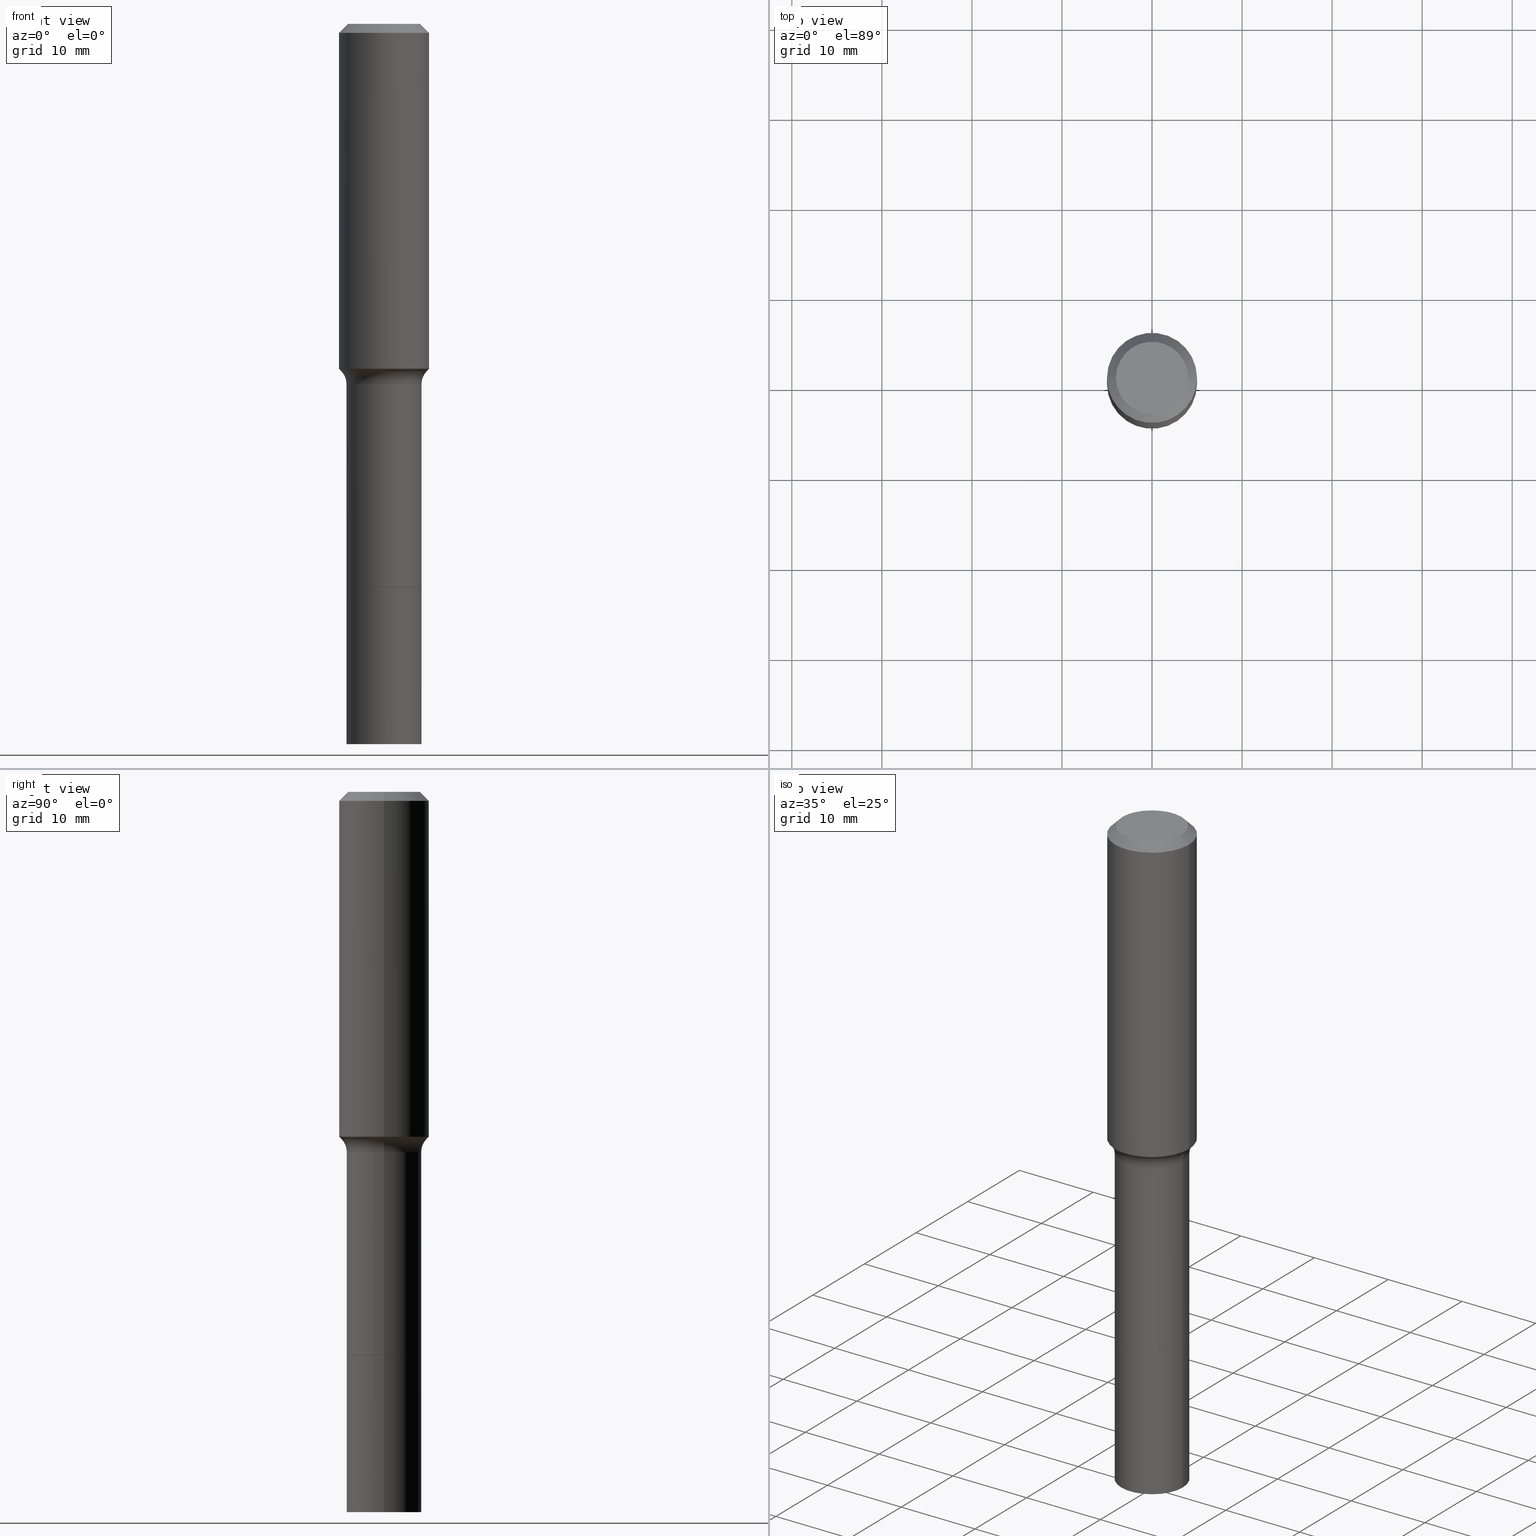
[diagram: canonical four-view strip — front | top / right | iso, engineering-drawing reading convention]
A machine part, canonical four-view strip (front | top / right | iso — engineering-drawing reading convention). The complete STEP part file that produces these views, byte-faithful:
ISO-10303-21;
HEADER;
FILE_DESCRIPTION (( 'STEP AP203' ),
    '1' );
FILE_NAME ('58518.STEP',
    '2025-04-01T15:24:11',
    ( '' ),
    ( '' ),
    'SwSTEP 2.0',
    'SolidWorks 2024',
    '' );
FILE_SCHEMA (( 'CONFIG_CONTROL_DESIGN' ));
ENDSEC;

DATA;
#1 = CARTESIAN_POINT ( 'NONE',  ( 6.027102419723887066E-29, -8.605104907712816179E-15, -2.464599999999999902 ) ) ;
#2 = PLANE ( 'NONE',  #517 ) ;
#3 = EDGE_LOOP ( 'NONE', ( #142, #486, #69, #491 ) ) ;
#4 = ADVANCED_FACE ( 'NONE', ( #74 ), #274, .T. ) ;
#5 = PERSON_AND_ORGANIZATION_ROLE ( 'design_owner' ) ;
#6 = CIRCLE ( 'NONE', #64, 0.1640500000000000014 ) ;
#7 = PERSON_AND_ORGANIZATION_ROLE ( 'creator' ) ;
#8 = CALENDAR_DATE ( 2025, 1, 4 ) ;
#9 = LINE ( 'NONE', #282, #296 ) ;
#10 = DIRECTION ( 'NONE',  ( 1.000000000000000000, -6.982962677686267499E-15, 0.000000000000000000 ) ) ;
#11 = ADVANCED_FACE ( 'NONE', ( #316 ), #512, .F. ) ;
#12 = DIRECTION ( 'NONE',  ( 2.438088387897960049E-29, -3.491481338843145188E-15, -1.000000000000000000 ) ) ;
#13 = AXIS2_PLACEMENT_3D ( 'NONE', #231, #271, #432 ) ;
#14 = APPROVAL_ROLE ( '' ) ;
#15 = DIRECTION ( 'NONE',  ( -2.445468806185136597E-29, 3.491481338843145583E-15, 1.000000000000000000 ) ) ;
#16 = EDGE_LOOP ( 'NONE', ( #335, #272, #263, #386 ) ) ;
#17 = PERSON_AND_ORGANIZATION_ROLE ( 'creator' ) ;
#18 = ADVANCED_FACE ( 'NONE', ( #473 ), #215, .T. ) ;
#19 = CARTESIAN_POINT ( 'NONE',  ( 6.025879685320794265E-29, -8.603359167043393887E-15, -2.464099999999999735 ) ) ;
#20 =( GEOMETRIC_REPRESENTATION_CONTEXT ( 3 ) GLOBAL_UNCERTAINTY_ASSIGNED_CONTEXT ( ( #186 ) ) GLOBAL_UNIT_ASSIGNED_CONTEXT ( ( #487, #134, #94 ) ) REPRESENTATION_CONTEXT ( 'NONE', 'WORKASPACE' ) );
#21 = ORIENTED_EDGE ( 'NONE', *, *, #202, .F. ) ;
#22 = PERSON_AND_ORGANIZATION ( #183, #261 ) ;
#23 = DIRECTION ( 'NONE',  ( -0.7071067811865453523, 2.468850131082234184E-15, -0.7071067811865496822 ) ) ;
#24 = CIRCLE ( 'NONE', #373, 0.1855417038704667287 ) ;
#25 = VECTOR ( 'NONE', #23, 39.37007874015748143 ) ;
#26 = ORIENTED_EDGE ( 'NONE', *, *, #167, .T. ) ;
#27 = CARTESIAN_POINT ( 'NONE',  ( -0.1968500000000000250, -1.302452302324870387E-15, -0.03937000000000025896 ) ) ;
#28 = VERTEX_POINT ( 'NONE', #80 ) ;
#29 = DIRECTION ( 'NONE',  ( 1.000000000000000000, -6.982962677686267499E-15, 0.000000000000000000 ) ) ;
#30 = ORIENTED_EDGE ( 'NONE', *, *, #39, .T. ) ;
#31 = EDGE_CURVE ( 'NONE', #270, #28, #232, .T. ) ;
#32 = CC_DESIGN_APPROVAL ( #496, ( #340 ) ) ;
#33 = LINE ( 'NONE', #387, #170 ) ;
#34 = LINE ( 'NONE', #345, #427 ) ;
#35 = AXIS2_PLACEMENT_3D ( 'NONE', #485, #96, #95 ) ;
#36 = DIRECTION ( 'NONE',  ( -2.445468806185136597E-29, 3.491481338843145583E-15, 1.000000000000000000 ) ) ;
#37 = CARTESIAN_POINT ( 'NONE',  ( -0.1640500000000000014, -8.635291908252151260E-15, -3.149600000000000399 ) ) ;
#38 = DIRECTION ( 'NONE',  ( 0.7071067811864509833, -2.468850131081245741E-15, 0.7071067811866440511 ) ) ;
#39 = EDGE_CURVE ( 'NONE', #58, #417, #6, .T. ) ;
#40 = DIRECTION ( 'NONE',  ( 1.000000000000000000, -6.982962677686265922E-15, 4.876176775795935793E-29 ) ) ;
#41 = CARTESIAN_POINT ( 'NONE',  ( 0.1640500000000000014, -1.214232465209480476E-14, -3.149600000000000399 ) ) ;
#42 = ORIENTED_EDGE ( 'NONE', *, *, #243, .F. ) ;
#43 = AXIS2_PLACEMENT_3D ( 'NONE', #213, #439, #87 ) ;
#44 = AXIS2_PLACEMENT_3D ( 'NONE', #70, #463, #509 ) ;
#45 = DIRECTION ( 'NONE',  ( 1.000000000000000000, -6.982962677686270655E-15, 0.000000000000000000 ) ) ;
#46 = VERTEX_POINT ( 'NONE', #514 ) ;
#47 = APPLICATION_PROTOCOL_DEFINITION ( 'international standard', 'config_control_design', 1994, #173 ) ;
#48 = PERSON_AND_ORGANIZATION ( #183, #261 ) ;
#49 = CARTESIAN_POINT ( 'NONE',  ( 0.000000000000000000, 0.000000000000000000, 0.000000000000000000 ) ) ;
#50 = APPROVAL ( #299, 'UNSPECIFIED' ) ;
#51 = LENGTH_MEASURE_WITH_UNIT ( LENGTH_MEASURE( 0.02539999999999999897 ), #168 );
#52 = DIRECTION ( 'NONE',  ( 1.000000000000000000, -6.982962677686265922E-15, 0.000000000000000000 ) ) ;
#53 = AXIS2_PLACEMENT_3D ( 'NONE', #143, #262, #29 ) ;
#54 = ORIENTED_EDGE ( 'NONE', *, *, #206, .F. ) ;
#55 = EDGE_CURVE ( 'NONE', #220, #218, #388, .T. ) ;
#56 = DATE_AND_TIME ( #185, #129 ) ;
#57 = CARTESIAN_POINT ( 'NONE',  ( -0.2440499999999999337, -3.763606969519893915E-15, -1.574600000000000222 ) ) ;
#58 = VERTEX_POINT ( 'NONE', #37 ) ;
#59 = DATE_TIME_ROLE ( 'classification_date' ) ;
#60 = DIRECTION ( 'NONE',  ( -2.445468806185136597E-29, 3.491481338843145583E-15, 1.000000000000000000 ) ) ;
#61 = ORIENTED_EDGE ( 'NONE', *, *, #322, .F. ) ;
#62 = APPROVAL_DATE_TIME ( #490, #50 ) ;
#63 = CARTESIAN_POINT ( 'NONE',  ( 3.850635182219116347E-29, -5.497686516142417553E-15, -1.574600000000000222 ) ) ;
#64 = AXIS2_PLACEMENT_3D ( 'NONE', #349, #384, #237 ) ;
#65 = AXIS2_PLACEMENT_3D ( 'NONE', #153, #235, #353 ) ;
#66 = ORIENTED_EDGE ( 'NONE', *, *, #214, .T. ) ;
#67 = SECURITY_CLASSIFICATION_LEVEL ( 'unclassified' ) ;
#68 = CARTESIAN_POINT ( 'NONE',  ( 0.1640499999999999181, -6.643241543416849216E-15, -1.574600000000000222 ) ) ;
#69 = ORIENTED_EDGE ( 'NONE', *, *, #250, .T. ) ;
#70 = CARTESIAN_POINT ( 'NONE',  ( 0.000000000000000000, 0.000000000000000000, 0.000000000000000000 ) ) ;
#71 = ORIENTED_EDGE ( 'NONE', *, *, #250, .F. ) ;
#72 = LOCAL_TIME ( 11, 24, 11.00000000000000000, #360 ) ;
#73 = CARTESIAN_POINT ( 'NONE',  ( 0.000000000000000000, 0.000000000000000000, 0.000000000000000000 ) ) ;
#74 = FACE_OUTER_BOUND ( 'NONE', #3, .T. ) ;
#75 = CIRCLE ( 'NONE', #343, 0.1640500000000000014 ) ;
#76 = CC_DESIGN_PERSON_AND_ORGANIZATION_ASSIGNMENT ( #48, #5, ( #483 ) ) ;
#77 = CARTESIAN_POINT ( 'NONE',  ( 9.627810689950945397E-31, -1.374596203102555315E-16, -0.03937000000000025896 ) ) ;
#78 = ORIENTED_EDGE ( 'NONE', *, *, #461, .F. ) ;
#79 = DIRECTION ( 'NONE',  ( -1.000000000000000000, 6.982962677686265922E-15, -4.876176775795935793E-29 ) ) ;
#80 = CARTESIAN_POINT ( 'NONE',  ( -0.1968500000000001915, -3.866148359683242586E-15, -1.507913468261995016 ) ) ;
#81 = CARTESIAN_POINT ( 'NONE',  ( 6.027102419723887066E-29, -8.605104907712816179E-15, -2.464599999999999902 ) ) ;
#82 = VERTEX_POINT ( 'NONE', #196 ) ;
#83 = AXIS2_PLACEMENT_3D ( 'NONE', #73, #36, #199 ) ;
#84 = DIRECTION ( 'NONE',  ( 0.000000000000000000, 0.000000000000000000, 1.000000000000000000 ) ) ;
#85 = EDGE_CURVE ( 'NONE', #121, #267, #350, .T. ) ;
#86 = CALENDAR_DATE ( 2025, 1, 4 ) ;
#87 = DIRECTION ( 'NONE',  ( 1.000000000000000000, -6.982962677686265922E-15, 0.000000000000000000 ) ) ;
#88 = AXIS2_PLACEMENT_3D ( 'NONE', #484, #169, #130 ) ;
#89 = CARTESIAN_POINT ( 'NONE',  ( 3.850635182219116347E-29, -5.497686516142417553E-15, -1.574600000000000222 ) ) ;
#90 = APPLICATION_CONTEXT ( 'configuration controlled 3d designs of mechanical parts and assemblies' ) ;
#91 = EDGE_CURVE ( 'NONE', #121, #366, #34, .T. ) ;
#92 = AXIS2_PLACEMENT_3D ( 'NONE', #455, #378, #52 ) ;
#93 = DATE_TIME_ROLE ( 'creation_date' ) ;
#94 =( NAMED_UNIT ( * ) SI_UNIT ( $, .STERADIAN. ) SOLID_ANGLE_UNIT ( ) );
#95 = DIRECTION ( 'NONE',  ( 1.000000000000000000, -6.982962677686270655E-15, 0.000000000000000000 ) ) ;
#96 = DIRECTION ( 'NONE',  ( -2.445468806185136597E-29, 3.491481338843145583E-15, 1.000000000000000000 ) ) ;
#97 = TOROIDAL_SURFACE ( 'NONE', #418, 0.2440499999999999337, 0.07999999999999993228 ) ;
#98 = DIRECTION ( 'NONE',  ( 1.000000000000000000, -6.982962677686270655E-15, 0.000000000000000000 ) ) ;
#99 = ORIENTED_EDGE ( 'NONE', *, *, #364, .T. ) ;
#100 = COORDINATED_UNIVERSAL_TIME_OFFSET ( 5, 0, .BEHIND. ) ;
#101 = DIRECTION ( 'NONE',  ( -1.000000000000000000, 7.105427357601005014E-15, 0.000000000000000000 ) ) ;
#102 = FACE_OUTER_BOUND ( 'NONE', #259, .T. ) ;
#103 = VERTEX_POINT ( 'NONE', #348 ) ;
#104 = DIRECTION ( 'NONE',  ( 1.000000000000000000, -6.982962677686269077E-15, 0.000000000000000000 ) ) ;
#105 = ORIENTED_EDGE ( 'NONE', *, *, #304, .T. ) ;
#106 = DATE_AND_TIME ( #146, #72 ) ;
#107 = EDGE_CURVE ( 'NONE', #443, #46, #9, .T. ) ;
#108 = CARTESIAN_POINT ( 'NONE',  ( 6.027102419723887066E-29, -8.605104907712816179E-15, -2.464599999999999902 ) ) ;
#109 = ORIENTED_EDGE ( 'NONE', *, *, #471, .F. ) ;
#110 = DIRECTION ( 'NONE',  ( -2.445468806185136597E-29, 3.491481338843145583E-15, 1.000000000000000000 ) ) ;
#111 = ORIENTED_EDGE ( 'NONE', *, *, #424, .T. ) ;
#112 = FACE_OUTER_BOUND ( 'NONE', #189, .T. ) ;
#113 = ORIENTED_EDGE ( 'NONE', *, *, #154, .F. ) ;
#114 = ADVANCED_FACE ( 'NONE', ( #102 ), #323, .T. ) ;
#115 = CIRCLE ( 'NONE', #122, 0.1640499999999999181 ) ;
#116 = DIRECTION ( 'NONE',  ( 1.000000000000000000, -6.982962677686269077E-15, 0.000000000000000000 ) ) ;
#117 = CARTESIAN_POINT ( 'NONE',  ( -0.1855417038704667287, -3.988838653702912097E-15, -1.520040131195000255 ) ) ;
#118 = DIRECTION ( 'NONE',  ( 1.000000000000000000, -6.982962677686265922E-15, 4.876223630392693006E-29 ) ) ;
#119 = ORIENTED_EDGE ( 'NONE', *, *, #461, .T. ) ;
#120 = DIRECTION ( 'NONE',  ( -1.000000000000000000, 6.982962677686265922E-15, 0.000000000000000000 ) ) ;
#121 = VERTEX_POINT ( 'NONE', #401 ) ;
#122 = AXIS2_PLACEMENT_3D ( 'NONE', #89, #362, #10 ) ;
#123 = ADVANCED_FACE ( 'NONE', ( #481 ), #132, .T. ) ;
#124 = VECTOR ( 'NONE', #137, 39.37007874015748143 ) ;
#125 = VECTOR ( 'NONE', #38, 39.37007874015748143 ) ;
#126 = APPROVAL_STATUS ( 'not_yet_approved' ) ;
#127 = DIRECTION ( 'NONE',  ( -2.445468806185136597E-29, 3.491481338843145583E-15, 1.000000000000000000 ) ) ;
#128 = CC_DESIGN_PERSON_AND_ORGANIZATION_ASSIGNMENT ( #394, #7, ( #340 ) ) ;
#129 = LOCAL_TIME ( 11, 24, 11.00000000000000000, #100 ) ;
#130 = DIRECTION ( 'NONE',  ( 1.000000000000000000, -6.982962677686265133E-15, 0.000000000000000000 ) ) ;
#131 = ORIENTED_EDGE ( 'NONE', *, *, #330, .F. ) ;
#132 = CONICAL_SURFACE ( 'NONE', #224, 0.1635500000000000009, 0.7853981633973118326 ) ;
#133 = AXIS2_PLACEMENT_3D ( 'NONE', #77, #229, #120 ) ;
#134 =( NAMED_UNIT ( * ) PLANE_ANGLE_UNIT ( ) SI_UNIT ( $, .RADIAN. ) );
#135 = SHAPE_DEFINITION_REPRESENTATION ( #371, #488 ) ;
#136 = APPROVAL_PERSON_ORGANIZATION ( #247, #280, #400 ) ;
#137 = DIRECTION ( 'NONE',  ( -2.445468806185136877E-29, 3.491481338843145188E-15, 1.000000000000000000 ) ) ;
#138 = ORIENTED_EDGE ( 'NONE', *, *, #214, .F. ) ;
#139 = PERSON_AND_ORGANIZATION ( #183, #261 ) ;
#140 = AXIS2_PLACEMENT_3D ( 'NONE', #431, #205, #166 ) ;
#141 = CARTESIAN_POINT ( 'NONE',  ( 0.000000000000000000, 0.000000000000000000, 0.000000000000000000 ) ) ;
#142 = ORIENTED_EDGE ( 'NONE', *, *, #221, .F. ) ;
#143 = CARTESIAN_POINT ( 'NONE',  ( 3.850635182219116347E-29, -5.497686516142417553E-15, -1.574600000000000222 ) ) ;
#144 = ORIENTED_EDGE ( 'NONE', *, *, #206, .T. ) ;
#145 = EDGE_CURVE ( 'NONE', #46, #311, #516, .T. ) ;
#146 = CALENDAR_DATE ( 2025, 1, 4 ) ;
#147 = DIRECTION ( 'NONE',  ( 1.000000000000000000, -6.982962677686265133E-15, 0.000000000000000000 ) ) ;
#148 = VERTEX_POINT ( 'NONE', #327 ) ;
#149 = LINE ( 'NONE', #179, #25 ) ;
#150 = CIRCLE ( 'NONE', #436, 0.1635500000000000009 ) ;
#151 = CONICAL_SURFACE ( 'NONE', #437, 0.1635500000000000009, 0.7853981633973118326 ) ;
#152 = ORIENTED_EDGE ( 'NONE', *, *, #347, .F. ) ;
#153 = CARTESIAN_POINT ( 'NONE',  ( 3.687555349061150252E-29, -5.264851735027001951E-15, -1.507913468261995016 ) ) ;
#154 = EDGE_CURVE ( 'NONE', #148, #218, #328, .T. ) ;
#155 = ORIENTED_EDGE ( 'NONE', *, *, #39, .F. ) ;
#156 = DIRECTION ( 'NONE',  ( 2.438088387897960049E-29, -3.491481338843145188E-15, -1.000000000000000000 ) ) ;
#157 = CARTESIAN_POINT ( 'NONE',  ( 9.627810689950945397E-31, -1.374596203102555315E-16, -0.03937000000000025896 ) ) ;
#158 = CARTESIAN_POINT ( 'NONE',  ( -0.1640500000000000291, -5.884877483578459975E-15, -2.464099999999999735 ) ) ;
#159 = CLOSED_SHELL ( 'NONE', ( #114, #356, #312, #489 ) ) ;
#160 = VERTEX_POINT ( 'NONE', #222 ) ;
#161 = CONICAL_SURFACE ( 'NONE', #133, 0.1968500000000000250, 0.7853981633974452814 ) ;
#162 = CARTESIAN_POINT ( 'NONE',  ( -9.427742298522567634E-47, 1.346031739168368355E-32, 3.855188123715870730E-18 ) ) ;
#163 = EDGE_LOOP ( 'NONE', ( #42, #26, #391, #113 ) ) ;
#164 = PRODUCT_RELATED_PRODUCT_CATEGORY ( 'detail', '', ( #483 ) ) ;
#165 = CARTESIAN_POINT ( 'NONE',  ( 0.1640500000000000014, -9.750659934987248631E-15, -2.464599999999999902 ) ) ;
#166 = DIRECTION ( 'NONE',  ( 1.000000000000000000, -6.982962677686266711E-15, 4.876176775795935793E-29 ) ) ;
#167 = EDGE_CURVE ( 'NONE', #270, #184, #178, .T. ) ;
#168 =( LENGTH_UNIT ( ) NAMED_UNIT ( * ) SI_UNIT ( $, .METRE. ) );
#169 = DIRECTION ( 'NONE',  ( -2.445468806185136597E-29, 3.491481338843145583E-15, 1.000000000000000000 ) ) ;
#170 = VECTOR ( 'NONE', #197, 39.37007874015748143 ) ;
#171 = DIRECTION ( 'NONE',  ( -1.000000000000000000, 6.982962677686265922E-15, -4.876176775795935793E-29 ) ) ;
#172 = EDGE_CURVE ( 'NONE', #148, #270, #239, .T. ) ;
#173 = APPLICATION_CONTEXT ( 'configuration controlled 3d designs of mechanical parts and assemblies' ) ;
#174 = CARTESIAN_POINT ( 'NONE',  ( 0.1635500000000000009, -9.747168453648404046E-15, -2.464599999999999902 ) ) ;
#175 = ORIENTED_EDGE ( 'NONE', *, *, #85, .F. ) ;
#176 = AXIS2_PLACEMENT_3D ( 'NONE', #402, #12, #171 ) ;
#177 = ORIENTED_EDGE ( 'NONE', *, *, #107, .T. ) ;
#178 = CIRCLE ( 'NONE', #468, 0.07999999999999993228 ) ;
#179 = CARTESIAN_POINT ( 'NONE',  ( -0.1968500000000000250, 1.237136582792286225E-15, -0.03937000000000025896 ) ) ;
#180 = EDGE_CURVE ( 'NONE', #267, #121, #150, .T. ) ;
#181 = ORIENTED_EDGE ( 'NONE', *, *, #330, .T. ) ;
#182 = FACE_OUTER_BOUND ( 'NONE', #355, .T. ) ;
#183 = PERSON ( 'UNSPECIFIED', 'UNSPECIFIED', 'UNSPECIFIED', ('UNSPECIFIED'), ('UNSPECIFIED'), ('UNSPECIFIED') ) ;
#184 = VERTEX_POINT ( 'NONE', #334 ) ;
#185 = CALENDAR_DATE ( 2025, 1, 4 ) ;
#186 = UNCERTAINTY_MEASURE_WITH_UNIT (LENGTH_MEASURE( 1.000000000000000082E-05 ), #487, 'distance_accuracy_value', 'NONE');
#187 = DIRECTION ( 'NONE',  ( 1.000000000000000000, -6.982962677686260400E-15, 0.000000000000000000 ) ) ;
#188 = CC_DESIGN_APPROVAL ( #280, ( #212 ) ) ;
#189 = EDGE_LOOP ( 'NONE', ( #408, #506, #498, #152 ) ) ;
#190 = ADVANCED_FACE ( 'NONE', ( #505 ), #446, .T. ) ;
#191 = FACE_OUTER_BOUND ( 'NONE', #163, .T. ) ;
#192 = AXIS2_PLACEMENT_3D ( 'NONE', #234, #230, #40 ) ;
#193 = AXIS2_PLACEMENT_3D ( 'NONE', #307, #511, #45 ) ;
#194 = ORIENTED_EDGE ( 'NONE', *, *, #392, .T. ) ;
#195 = DIRECTION ( 'NONE',  ( -2.445468806185136877E-29, 3.491481338843145188E-15, 1.000000000000000000 ) ) ;
#196 = CARTESIAN_POINT ( 'NONE',  ( -0.1574800000000000089, 1.168406772637159618E-15, 3.855188123707939751E-18 ) ) ;
#197 = DIRECTION ( 'NONE',  ( 0.6819983600624884845, -2.208861293262373251E-15, 0.7313537016191797857 ) ) ;
#198 = ORIENTED_EDGE ( 'NONE', *, *, #392, .F. ) ;
#199 = DIRECTION ( 'NONE',  ( 1.000000000000000000, -6.982962677686266711E-15, 4.876176775795935793E-29 ) ) ;
#200 = CLOSED_SHELL ( 'NONE', ( #444, #382, #440, #515, #433, #190, #376, #294, #397, #4, #18, #407, #11, #123 ) ) ;
#201 = CARTESIAN_POINT ( 'NONE',  ( 0.1640500000000000014, -1.145555027274432057E-15, 7.999368000693231542E-30 ) ) ;
#202 = EDGE_CURVE ( 'NONE', #58, #160, #227, .T. ) ;
#203 = CIRCLE ( 'NONE', #409, 0.1640500000000000014 ) ;
#204 = FACE_OUTER_BOUND ( 'NONE', #16, .T. ) ;
#205 = DIRECTION ( 'NONE',  ( -2.445468806185136597E-29, 3.491481338843145583E-15, 1.000000000000000000 ) ) ;
#206 = EDGE_CURVE ( 'NONE', #82, #311, #149, .T. ) ;
#207 = APPLICATION_PROTOCOL_DEFINITION ( 'international standard', 'config_control_design', 1994, #90 ) ;
#208 = AXIS2_PLACEMENT_3D ( 'NONE', #266, #60, #258 ) ;
#209 = FACE_OUTER_BOUND ( 'NONE', #337, .T. ) ;
#210 = MECHANICAL_CONTEXT ( 'NONE', #173, 'mechanical' ) ;
#211 = DIRECTION ( 'NONE',  ( 1.000000000000000000, -6.982962677686260400E-15, 0.000000000000000000 ) ) ;
#212 = PRODUCT_DEFINITION_FORMATION_WITH_SPECIFIED_SOURCE ( 'ANY', '', #483, .NOT_KNOWN. ) ;
#213 = CARTESIAN_POINT ( 'NONE',  ( 9.627810689950945397E-31, -1.374596203102555315E-16, -0.03937000000000025896 ) ) ;
#214 = EDGE_CURVE ( 'NONE', #306, #160, #75, .T. ) ;
#215 = CONICAL_SURFACE ( 'NONE', #264, 0.1968500000000000250, 0.7853981633974452814 ) ;
#216 = CIRCLE ( 'NONE', #65, 0.1968500000000001915 ) ;
#217 = LINE ( 'NONE', #344, #125 ) ;
#218 = VERTEX_POINT ( 'NONE', #68 ) ;
#219 = DIRECTION ( 'NONE',  ( 1.000000000000000000, -6.982962677686266711E-15, 4.876176775795935232E-29 ) ) ;
#220 = VERTEX_POINT ( 'NONE', #336 ) ;
#221 = EDGE_CURVE ( 'NONE', #28, #311, #365, .T. ) ;
#222 = CARTESIAN_POINT ( 'NONE',  ( -0.1640500000000000014, -8.635291908252151260E-15, -2.464599999999999902 ) ) ;
#223 = ORIENTED_EDGE ( 'NONE', *, *, #172, .T. ) ;
#224 = AXIS2_PLACEMENT_3D ( 'NONE', #395, #403, #211 ) ;
#225 = CARTESIAN_POINT ( 'NONE',  ( 0.1640500000000000014, -9.750659934987248631E-15, -2.464599999999999902 ) ) ;
#226 = ORIENTED_EDGE ( 'NONE', *, *, #415, .F. ) ;
#227 = LINE ( 'NONE', #293, #252 ) ;
#228 = ORIENTED_EDGE ( 'NONE', *, *, #85, .T. ) ;
#229 = DIRECTION ( 'NONE',  ( 2.445468806185136597E-29, -3.491481338843145583E-15, -1.000000000000000000 ) ) ;
#230 = DIRECTION ( 'NONE',  ( -2.438088387897960049E-29, 3.491481338843145188E-15, 1.000000000000000000 ) ) ;
#231 = CARTESIAN_POINT ( 'NONE',  ( 3.850635182219116347E-29, -5.497686516142417553E-15, -1.574600000000000222 ) ) ;
#232 = LINE ( 'NONE', #117, #313 ) ;
#233 = CARTESIAN_POINT ( 'NONE',  ( 7.702248551960706711E-29, -1.099676962482037231E-14, -3.149600000000000399 ) ) ;
#234 = CARTESIAN_POINT ( 'NONE',  ( 6.027102419723887066E-29, -8.605104907712816179E-15, -2.464599999999999902 ) ) ;
#235 = DIRECTION ( 'NONE',  ( -2.445468806185136597E-29, 3.491481338843145583E-15, 1.000000000000000000 ) ) ;
#236 = CC_DESIGN_PERSON_AND_ORGANIZATION_ASSIGNMENT ( #448, #369, ( #251 ) ) ;
#237 = DIRECTION ( 'NONE',  ( 1.000000000000000000, -6.982962677686270655E-15, 0.000000000000000000 ) ) ;
#238 = CARTESIAN_POINT ( 'NONE',  ( -9.427742298522567634E-47, 1.346031739168368355E-32, 3.855188123715870730E-18 ) ) ;
#239 = CIRCLE ( 'NONE', #208, 0.1855417038704667287 ) ;
#240 = ORIENTED_EDGE ( 'NONE', *, *, #256, .F. ) ;
#241 = TOROIDAL_SURFACE ( 'NONE', #13, 0.2440499999999999337, 0.07999999999999993228 ) ;
#242 = DIRECTION ( 'NONE',  ( 1.000000000000000000, 0.000000000000000000, 0.000000000000000000 ) ) ;
#243 = EDGE_CURVE ( 'NONE', #270, #148, #24, .T. ) ;
#244 = DATE_AND_TIME ( #86, #404 ) ;
#245 = DIRECTION ( 'NONE',  ( -6.982962677686266711E-15, -1.000000000000000000, 3.491481338843145583E-15 ) ) ;
#246 = CONICAL_SURFACE ( 'NONE', #88, 0.1855417038704667287, 0.7504915783575480948 ) ;
#247 = PERSON_AND_ORGANIZATION ( #183, #261 ) ;
#248 = APPROVAL_STATUS ( 'not_yet_approved' ) ;
#249 = FACE_OUTER_BOUND ( 'NONE', #295, .T. ) ;
#250 = EDGE_CURVE ( 'NONE', #103, #46, #499, .T. ) ;
#251 = SECURITY_CLASSIFICATION ( '', '', #67 ) ;
#252 = VECTOR ( 'NONE', #254, 39.37007874015748143 ) ;
#253 = AXIS2_PLACEMENT_3D ( 'NONE', #319, #314, #79 ) ;
#254 = DIRECTION ( 'NONE',  ( -2.445468806185136877E-29, 3.491481338843145188E-15, 1.000000000000000000 ) ) ;
#255 = EDGE_LOOP ( 'NONE', ( #368, #228, #181, #240 ) ) ;
#256 = EDGE_CURVE ( 'NONE', #366, #220, #406, .T. ) ;
#257 = APPROVAL_DATE_TIME ( #106, #280 ) ;
#258 = DIRECTION ( 'NONE',  ( 1.000000000000000000, -6.982962677686265133E-15, 0.000000000000000000 ) ) ;
#259 = EDGE_LOOP ( 'NONE', ( #500, #308, #138, #198 ) ) ;
#260 = COORDINATED_UNIVERSAL_TIME_OFFSET ( 5, 0, .BEHIND. ) ;
#261 = ORGANIZATION ( 'UNSPECIFIED', 'UNSPECIFIED', '' ) ;
#262 = DIRECTION ( 'NONE',  ( -2.445468806185136597E-29, 3.491481338843145583E-15, 1.000000000000000000 ) ) ;
#263 = ORIENTED_EDGE ( 'NONE', *, *, #55, .T. ) ;
#264 = AXIS2_PLACEMENT_3D ( 'NONE', #157, #320, #277 ) ;
#265 = CIRCLE ( 'NONE', #193, 0.1640500000000000014 ) ;
#266 = CARTESIAN_POINT ( 'NONE',  ( 3.717210724986936016E-29, -5.307191752360030282E-15, -1.520040131195000255 ) ) ;
#267 = VERTEX_POINT ( 'NONE', #174 ) ;
#268 = FACE_OUTER_BOUND ( 'NONE', #303, .T. ) ;
#269 = CC_DESIGN_PERSON_AND_ORGANIZATION_ASSIGNMENT ( #139, #419, ( #212 ) ) ;
#270 = VERTEX_POINT ( 'NONE', #370 ) ;
#271 = DIRECTION ( 'NONE',  ( -2.445468806185136597E-29, 3.491481338843145583E-15, 1.000000000000000000 ) ) ;
#272 = ORIENTED_EDGE ( 'NONE', *, *, #256, .T. ) ;
#273 = FACE_OUTER_BOUND ( 'NONE', #332, .T. ) ;
#274 = CYLINDRICAL_SURFACE ( 'NONE', #140, 0.1968500000000001082 ) ;
#275 = CC_DESIGN_PERSON_AND_ORGANIZATION_ASSIGNMENT ( #494, #17, ( #212 ) ) ;
#276 = DIRECTION ( 'NONE',  ( -2.445468806185136597E-29, 3.491481338843145583E-15, 1.000000000000000000 ) ) ;
#277 = DIRECTION ( 'NONE',  ( -1.000000000000000000, 6.982962677686265922E-15, 0.000000000000000000 ) ) ;
#278 = PLANE ( 'NONE',  #253 ) ;
#279 = ORIENTED_EDGE ( 'NONE', *, *, #107, .F. ) ;
#280 = APPROVAL ( #248, 'UNSPECIFIED' ) ;
#281 = MANIFOLD_SOLID_BREP ( 'Body-Move/Copy2[2]', #200 ) ;
#282 = CARTESIAN_POINT ( 'NONE',  ( 0.1968500000000000250, -1.487948651171581601E-15, -0.03937000000000025896 ) ) ;
#283 = CIRCLE ( 'NONE', #92, 0.1968500000000000250 ) ;
#284 = APPROVAL_ROLE ( '' ) ;
#285 = COORDINATED_UNIVERSAL_TIME_OFFSET ( 5, 0, .BEHIND. ) ;
#286 = CC_DESIGN_SECURITY_CLASSIFICATION ( #251, ( #212 ) ) ;
#287 = DIRECTION ( 'NONE',  ( 1.000000000000000000, -6.982962677686266711E-15, 0.000000000000000000 ) ) ;
#288 = ORIENTED_EDGE ( 'NONE', *, *, #172, .F. ) ;
#289 = VECTOR ( 'NONE', #195, 39.37007874015748143 ) ;
#290 = CC_DESIGN_DATE_AND_TIME_ASSIGNMENT ( #56, #59, ( #251 ) ) ;
#291 = ORIENTED_EDGE ( 'NONE', *, *, #31, .T. ) ;
#292 = AXIS2_PLACEMENT_3D ( 'NONE', #238, #513, #118 ) ;
#293 = CARTESIAN_POINT ( 'NONE',  ( -0.1640500000000000014, -7.439459549698371617E-15, -2.464599999999999902 ) ) ;
#294 = ADVANCED_FACE ( 'NONE', ( #449 ), #97, .F. ) ;
#295 = EDGE_LOOP ( 'NONE', ( #223, #291, #450, #226 ) ) ;
#296 = VECTOR ( 'NONE', #456, 39.37007874015748143 ) ;
#297 = DIRECTION ( 'NONE',  ( 1.000000000000000000, -6.982962677686265133E-15, 0.000000000000000000 ) ) ;
#298 = ORIENTED_EDGE ( 'NONE', *, *, #471, .T. ) ;
#299 = APPROVAL_STATUS ( 'not_yet_approved' ) ;
#300 = DIRECTION ( 'NONE',  ( -2.445468806185136597E-29, 3.491481338843145583E-15, 1.000000000000000000 ) ) ;
#301 = EDGE_LOOP ( 'NONE', ( #279, #78, #144, #502 ) ) ;
#302 = DIRECTION ( 'NONE',  ( 1.000000000000000000, -6.982962677686270655E-15, 0.000000000000000000 ) ) ;
#303 = EDGE_LOOP ( 'NONE', ( #61, #155 ) ) ;
#304 = EDGE_CURVE ( 'NONE', #218, #184, #374, .T. ) ;
#305 = DIRECTION ( 'NONE',  ( 7.105427357601001859E-15, 1.000000000000000000, -3.491481338843145583E-15 ) ) ;
#306 = VERTEX_POINT ( 'NONE', #225 ) ;
#307 = CARTESIAN_POINT ( 'NONE',  ( 6.027102419723887066E-29, -8.605104907712816179E-15, -2.464599999999999902 ) ) ;
#308 = ORIENTED_EDGE ( 'NONE', *, *, #202, .T. ) ;
#309 = LINE ( 'NONE', #428, #289 ) ;
#310 = AXIS2_PLACEMENT_3D ( 'NONE', #49, #84, #242 ) ;
#311 = VERTEX_POINT ( 'NONE', #27 ) ;
#312 = ADVANCED_FACE ( 'NONE', ( #182 ), #338, .T. ) ;
#313 = VECTOR ( 'NONE', #467, 39.37007874015748143 ) ;
#314 = DIRECTION ( 'NONE',  ( 2.438088387897960049E-29, -3.491481338843145188E-15, -1.000000000000000000 ) ) ;
#315 = VECTOR ( 'NONE', #410, 39.37007874015748143 ) ;
#316 = FACE_OUTER_BOUND ( 'NONE', #457, .T. ) ;
#317 = CARTESIAN_POINT ( 'NONE',  ( 6.025879685320794265E-29, -8.603359167043393887E-15, -2.464099999999999735 ) ) ;
#318 = DIRECTION ( 'NONE',  ( 1.000000000000000000, -6.982962677686260400E-15, 0.000000000000000000 ) ) ;
#319 = CARTESIAN_POINT ( 'NONE',  ( -4.713871149261283817E-47, 6.730158695841841775E-33, 1.927594061857935365E-18 ) ) ;
#320 = DIRECTION ( 'NONE',  ( 2.445468806185136597E-29, -3.491481338843145583E-15, -1.000000000000000000 ) ) ;
#321 = APPROVAL_PERSON_ORGANIZATION ( #22, #50, #14 ) ;
#322 = EDGE_CURVE ( 'NONE', #417, #58, #203, .T. ) ;
#323 = CYLINDRICAL_SURFACE ( 'NONE', #35, 0.1640500000000000014 ) ;
#324 = AXIS2_PLACEMENT_3D ( 'NONE', #19, #375, #104 ) ;
#325 = CARTESIAN_POINT ( 'NONE',  ( 3.687555349061150252E-29, -5.264851735027001951E-15, -1.507913468261995016 ) ) ;
#326 = EDGE_CURVE ( 'NONE', #311, #46, #283, .T. ) ;
#327 = CARTESIAN_POINT ( 'NONE',  ( 0.1855417038704665345, -6.602822545641815467E-15, -1.520040131195000255 ) ) ;
#328 = CIRCLE ( 'NONE', #458, 0.07999999999999993228 ) ;
#329 = VECTOR ( 'NONE', #380, 39.37007874015748143 ) ;
#330 = EDGE_CURVE ( 'NONE', #267, #220, #217, .T. ) ;
#331 = CARTESIAN_POINT ( 'NONE',  ( 6.027102419723887066E-29, -8.605104907712816179E-15, -2.464599999999999902 ) ) ;
#332 = EDGE_LOOP ( 'NONE', ( #464, #462, #377, #131 ) ) ;
#333 = CC_DESIGN_APPROVAL ( #50, ( #251 ) ) ;
#334 = CARTESIAN_POINT ( 'NONE',  ( -0.1640499999999999181, -5.884877483578461552E-15, -1.574600000000000222 ) ) ;
#335 = ORIENTED_EDGE ( 'NONE', *, *, #364, .F. ) ;
#336 = CARTESIAN_POINT ( 'NONE',  ( 0.1640500000000000291, -9.748914194317826338E-15, -2.464099999999999735 ) ) ;
#337 = EDGE_LOOP ( 'NONE', ( #66, #476 ) ) ;
#338 = CYLINDRICAL_SURFACE ( 'NONE', #390, 0.1640500000000000014 ) ;
#339 = EDGE_LOOP ( 'NONE', ( #119, #298 ) ) ;
#340 = PRODUCT_DEFINITION ( 'UNKNOWN', '', #212, #504 ) ;
#341 = DIRECTION ( 'NONE',  ( -2.445468806185136597E-29, 3.491481338843145583E-15, 1.000000000000000000 ) ) ;
#342 = ORIENTED_EDGE ( 'NONE', *, *, #145, .F. ) ;
#343 = AXIS2_PLACEMENT_3D ( 'NONE', #416, #300, #98 ) ;
#344 = CARTESIAN_POINT ( 'NONE',  ( 0.1635500000000000009, -9.747168453648404046E-15, -2.464599999999999902 ) ) ;
#345 = CARTESIAN_POINT ( 'NONE',  ( -0.1635500000000000009, -7.443012263377171727E-15, -2.464599999999999902 ) ) ;
#346 = CARTESIAN_POINT ( 'NONE',  ( 0.1574800000000000089, -1.284169937930321189E-15, 3.855188123724205385E-18 ) ) ;
#347 = EDGE_CURVE ( 'NONE', #28, #103, #216, .T. ) ;
#348 = CARTESIAN_POINT ( 'NONE',  ( 0.1968500000000001915, -6.639447938129543559E-15, -1.507913468261995016 ) ) ;
#349 = CARTESIAN_POINT ( 'NONE',  ( 7.702248551960706711E-29, -1.099676962482037231E-14, -3.149600000000000399 ) ) ;
#350 = CIRCLE ( 'NONE', #497, 0.1635500000000000009 ) ;
#351 = DIRECTION ( 'NONE',  ( 1.000000000000000000, -6.982962677686260400E-15, 0.000000000000000000 ) ) ;
#352 = DIRECTION ( 'NONE',  ( -2.445468806185136877E-29, 3.491481338843145188E-15, 1.000000000000000000 ) ) ;
#353 = DIRECTION ( 'NONE',  ( 1.000000000000000000, -6.982962677686266711E-15, 0.000000000000000000 ) ) ;
#354 = CIRCLE ( 'NONE', #396, 0.1574800000000000089 ) ;
#355 = EDGE_LOOP ( 'NONE', ( #21, #30, #194, #379 ) ) ;
#356 = ADVANCED_FACE ( 'NONE', ( #268 ), #2, .T. ) ;
#357 = LOCAL_TIME ( 11, 24, 11.00000000000000000, #260 ) ;
#358 = DIRECTION ( 'NONE',  ( -2.445468806185136597E-29, 3.491481338843145583E-15, 1.000000000000000000 ) ) ;
#359 = EDGE_CURVE ( 'NONE', #160, #306, #265, .T. ) ;
#360 = COORDINATED_UNIVERSAL_TIME_OFFSET ( 5, 0, .BEHIND. ) ;
#361 = CARTESIAN_POINT ( 'NONE',  ( 0.2440499999999999337, -7.201878557631750868E-15, -1.574600000000000222 ) ) ;
#362 = DIRECTION ( 'NONE',  ( -2.445468806185136597E-29, 3.491481338843145583E-15, 1.000000000000000000 ) ) ;
#363 = CIRCLE ( 'NONE', #292, 0.1574800000000000089 ) ;
#364 = EDGE_CURVE ( 'NONE', #366, #184, #309, .T. ) ;
#365 = LINE ( 'NONE', #452, #315 ) ;
#366 = VERTEX_POINT ( 'NONE', #158 ) ;
#367 = CARTESIAN_POINT ( 'NONE',  ( 0.1968500000000001082, -1.374596203102542397E-15, 9.598753983154305062E-30 ) ) ;
#368 = ORIENTED_EDGE ( 'NONE', *, *, #91, .F. ) ;
#369 = PERSON_AND_ORGANIZATION_ROLE ( 'classification_officer' ) ;
#370 = CARTESIAN_POINT ( 'NONE',  ( -0.1855417038704665345, -3.988838653702914463E-15, -1.520040131195000255 ) ) ;
#371 = PRODUCT_DEFINITION_SHAPE ( 'NONE', 'NONE',  #340 ) ;
#372 = EDGE_LOOP ( 'NONE', ( #413, #288, #411, #105 ) ) ;
#373 = AXIS2_PLACEMENT_3D ( 'NONE', #412, #460, #297 ) ;
#374 = CIRCLE ( 'NONE', #53, 0.1640499999999999181 ) ;
#375 = DIRECTION ( 'NONE',  ( -2.445468806185136597E-29, 3.491481338843145583E-15, 1.000000000000000000 ) ) ;
#376 = ADVANCED_FACE ( 'NONE', ( #204 ), #474, .T. ) ;
#377 = ORIENTED_EDGE ( 'NONE', *, *, #424, .F. ) ;
#378 = DIRECTION ( 'NONE',  ( -2.445468806185136597E-29, 3.491481338843145583E-15, 1.000000000000000000 ) ) ;
#379 = ORIENTED_EDGE ( 'NONE', *, *, #359, .F. ) ;
#380 = DIRECTION ( 'NONE',  ( -2.445468806185136877E-29, 3.491481338843145188E-15, 1.000000000000000000 ) ) ;
#381 = EDGE_LOOP ( 'NONE', ( #426, #470, #342, #71 ) ) ;
#382 = ADVANCED_FACE ( 'NONE', ( #466 ), #161, .T. ) ;
#383 = CYLINDRICAL_SURFACE ( 'NONE', #83, 0.1968500000000001082 ) ;
#384 = DIRECTION ( 'NONE',  ( -2.445468806185136597E-29, 3.491481338843145583E-15, 1.000000000000000000 ) ) ;
#385 = DIRECTION ( 'NONE',  ( 1.000000000000000000, -6.982962677686265133E-15, 0.000000000000000000 ) ) ;
#386 = ORIENTED_EDGE ( 'NONE', *, *, #480, .F. ) ;
#387 = CARTESIAN_POINT ( 'NONE',  ( 0.1855417038704667287, -6.602822545641816256E-15, -1.520040131195000255 ) ) ;
#388 = LINE ( 'NONE', #201, #399 ) ;
#389 = DIRECTION ( 'NONE',  ( -1.000000000000000000, 6.982962677686265922E-15, -4.876176775795935793E-29 ) ) ;
#390 = AXIS2_PLACEMENT_3D ( 'NONE', #331, #420, #492 ) ;
#391 = ORIENTED_EDGE ( 'NONE', *, *, #480, .T. ) ;
#392 = EDGE_CURVE ( 'NONE', #417, #306, #518, .T. ) ;
#393 = DIRECTION ( 'NONE',  ( 1.000000000000000000, -6.982962677686265922E-15, 4.876223630392693006E-29 ) ) ;
#394 = PERSON_AND_ORGANIZATION ( #183, #261 ) ;
#395 = CARTESIAN_POINT ( 'NONE',  ( 6.027102419723887066E-29, -8.605104907712816179E-15, -2.464599999999999902 ) ) ;
#396 = AXIS2_PLACEMENT_3D ( 'NONE', #162, #358, #393 ) ;
#397 = ADVANCED_FACE ( 'NONE', ( #112 ), #479, .T. ) ;
#398 = PERSON_AND_ORGANIZATION ( #183, #261 ) ;
#399 = VECTOR ( 'NONE', #352, 39.37007874015748143 ) ;
#400 = APPROVAL_ROLE ( '' ) ;
#401 = CARTESIAN_POINT ( 'NONE',  ( -0.1635500000000000009, -7.440363036203059737E-15, -2.464599999999999902 ) ) ;
#402 = CARTESIAN_POINT ( 'NONE',  ( 6.027102419723887066E-29, -8.605104907712816179E-15, -2.464599999999999902 ) ) ;
#403 = DIRECTION ( 'NONE',  ( -2.445468806185136597E-29, 3.491481338843145583E-15, 1.000000000000000000 ) ) ;
#404 = LOCAL_TIME ( 11, 24, 11.00000000000000000, #438 ) ;
#405 = DIRECTION ( 'NONE',  ( -2.445468806185136597E-29, 3.491481338843145583E-15, 1.000000000000000000 ) ) ;
#406 = CIRCLE ( 'NONE', #324, 0.1640500000000000291 ) ;
#407 = ADVANCED_FACE ( 'NONE', ( #422 ), #278, .F. ) ;
#408 = ORIENTED_EDGE ( 'NONE', *, *, #31, .F. ) ;
#409 = AXIS2_PLACEMENT_3D ( 'NONE', #501, #110, #302 ) ;
#410 = DIRECTION ( 'NONE',  ( -2.445468806185136877E-29, 3.491481338843145188E-15, 1.000000000000000000 ) ) ;
#411 = ORIENTED_EDGE ( 'NONE', *, *, #154, .T. ) ;
#412 = CARTESIAN_POINT ( 'NONE',  ( 3.717210724986936016E-29, -5.307191752360030282E-15, -1.520040131195000255 ) ) ;
#413 = ORIENTED_EDGE ( 'NONE', *, *, #167, .F. ) ;
#414 = CALENDAR_DATE ( 2025, 1, 4 ) ;
#415 = EDGE_CURVE ( 'NONE', #148, #103, #33, .T. ) ;
#416 = CARTESIAN_POINT ( 'NONE',  ( 6.027102419723887066E-29, -8.605104907712816179E-15, -2.464599999999999902 ) ) ;
#417 = VERTEX_POINT ( 'NONE', #41 ) ;
#418 = AXIS2_PLACEMENT_3D ( 'NONE', #63, #15, #495 ) ;
#419 = PERSON_AND_ORGANIZATION_ROLE ( 'design_supplier' ) ;
#420 = DIRECTION ( 'NONE',  ( -2.445468806185136597E-29, 3.491481338843145583E-15, 1.000000000000000000 ) ) ;
#421 = ORIENTED_EDGE ( 'NONE', *, *, #145, .T. ) ;
#422 = FACE_OUTER_BOUND ( 'NONE', #339, .T. ) ;
#423 = DIRECTION ( 'NONE',  ( -2.445468806185136597E-29, 3.491481338843145583E-15, 1.000000000000000000 ) ) ;
#424 = EDGE_CURVE ( 'NONE', #220, #366, #507, .T. ) ;
#425 = FACE_OUTER_BOUND ( 'NONE', #381, .T. ) ;
#426 = ORIENTED_EDGE ( 'NONE', *, *, #508, .T. ) ;
#427 = VECTOR ( 'NONE', #510, 39.37007874015748143 ) ;
#428 = CARTESIAN_POINT ( 'NONE',  ( -0.1640500000000000014, 1.165645358014444365E-15, -8.069513015563172164E-30 ) ) ;
#429 = EDGE_LOOP ( 'NONE', ( #109, #177, #421, #54 ) ) ;
#430 = DIRECTION ( 'NONE',  ( -2.445468806185136597E-29, 3.491481338843145583E-15, 1.000000000000000000 ) ) ;
#431 = CARTESIAN_POINT ( 'NONE',  ( 0.000000000000000000, 0.000000000000000000, 0.000000000000000000 ) ) ;
#432 = DIRECTION ( 'NONE',  ( 1.000000000000000000, -6.982962677686268288E-15, 4.883557194083113462E-29 ) ) ;
#433 = ADVANCED_FACE ( 'NONE', ( #191 ), #241, .F. ) ;
#434 = CIRCLE ( 'NONE', #465, 0.1968500000000001915 ) ;
#435 = ORIENTED_EDGE ( 'NONE', *, *, #304, .F. ) ;
#436 = AXIS2_PLACEMENT_3D ( 'NONE', #108, #405, #187 ) ;
#437 = AXIS2_PLACEMENT_3D ( 'NONE', #81, #276, #351 ) ;
#438 = COORDINATED_UNIVERSAL_TIME_OFFSET ( 5, 0, .BEHIND. ) ;
#439 = DIRECTION ( 'NONE',  ( -2.445468806185136597E-29, 3.491481338843145583E-15, 1.000000000000000000 ) ) ;
#440 = ADVANCED_FACE ( 'NONE', ( #425 ), #383, .T. ) ;
#441 = DATE_AND_TIME ( #8, #503 ) ;
#442 = AXIS2_PLACEMENT_3D ( 'NONE', #317, #472, #116 ) ;
#443 = VERTEX_POINT ( 'NONE', #346 ) ;
#444 = ADVANCED_FACE ( 'NONE', ( #273 ), #151, .T. ) ;
#445 = DIMENSIONAL_EXPONENTS ( 1.000000000000000000, 0.000000000000000000, 0.000000000000000000, 0.000000000000000000, 0.000000000000000000, 0.000000000000000000, 0.000000000000000000 ) ;
#446 = CYLINDRICAL_SURFACE ( 'NONE', #477, 0.1640500000000000014 ) ;
#447 = ORIENTED_EDGE ( 'NONE', *, *, #180, .F. ) ;
#448 = PERSON_AND_ORGANIZATION ( #183, #261 ) ;
#449 = FACE_OUTER_BOUND ( 'NONE', #372, .T. ) ;
#450 = ORIENTED_EDGE ( 'NONE', *, *, #508, .F. ) ;
#451 = CC_DESIGN_DATE_AND_TIME_ASSIGNMENT ( #441, #93, ( #340 ) ) ;
#452 = CARTESIAN_POINT ( 'NONE',  ( -0.1968500000000001082, 1.398703375343757985E-15, -9.682923725166787881E-30 ) ) ;
#453 = MANIFOLD_SOLID_BREP ( 'Body-Move/Copy2[1]', #159 ) ;
#454 = ORIENTED_EDGE ( 'NONE', *, *, #55, .F. ) ;
#455 = CARTESIAN_POINT ( 'NONE',  ( 9.627810689950945397E-31, -1.374596203102555315E-16, -0.03937000000000025896 ) ) ;
#456 = DIRECTION ( 'NONE',  ( 0.7071067811865453523, -7.319954787623248157E-15, -0.7071067811865496822 ) ) ;
#457 = EDGE_LOOP ( 'NONE', ( #447, #175 ) ) ;
#458 = AXIS2_PLACEMENT_3D ( 'NONE', #361, #245, #147 ) ;
#459 = AXIS2_PLACEMENT_3D ( 'NONE', #469, #430, #385 ) ;
#460 = DIRECTION ( 'NONE',  ( -2.445468806185136597E-29, 3.491481338843145583E-15, 1.000000000000000000 ) ) ;
#461 = EDGE_CURVE ( 'NONE', #82, #443, #363, .T. ) ;
#462 = ORIENTED_EDGE ( 'NONE', *, *, #91, .T. ) ;
#463 = DIRECTION ( 'NONE',  ( -2.445468806185136597E-29, 3.491481338843145583E-15, 1.000000000000000000 ) ) ;
#464 = ORIENTED_EDGE ( 'NONE', *, *, #180, .T. ) ;
#465 = AXIS2_PLACEMENT_3D ( 'NONE', #325, #127, #287 ) ;
#466 = FACE_OUTER_BOUND ( 'NONE', #429, .T. ) ;
#467 = DIRECTION ( 'NONE',  ( -0.6819983600624884845, 7.399397606724248711E-15, 0.7313537016191797857 ) ) ;
#468 = AXIS2_PLACEMENT_3D ( 'NONE', #57, #305, #101 ) ;
#469 = CARTESIAN_POINT ( 'NONE',  ( 3.717210724986936016E-29, -5.307191752360030282E-15, -1.520040131195000255 ) ) ;
#470 = ORIENTED_EDGE ( 'NONE', *, *, #221, .T. ) ;
#471 = EDGE_CURVE ( 'NONE', #443, #82, #354, .T. ) ;
#472 = DIRECTION ( 'NONE',  ( -2.445468806185136597E-29, 3.491481338843145583E-15, 1.000000000000000000 ) ) ;
#473 = FACE_OUTER_BOUND ( 'NONE', #301, .T. ) ;
#474 = CYLINDRICAL_SURFACE ( 'NONE', #44, 0.1640500000000000014 ) ;
#475 = APPROVAL_PERSON_ORGANIZATION ( #398, #496, #284 ) ;
#476 = ORIENTED_EDGE ( 'NONE', *, *, #359, .T. ) ;
#477 = AXIS2_PLACEMENT_3D ( 'NONE', #141, #341, #219 ) ;
#478 = PLANE ( 'NONE',  #176 ) ;
#479 = CONICAL_SURFACE ( 'NONE', #459, 0.1855417038704667287, 0.7504915783575480948 ) ;
#480 = EDGE_CURVE ( 'NONE', #184, #218, #115, .T. ) ;
#481 = FACE_OUTER_BOUND ( 'NONE', #255, .T. ) ;
#482 = APPROVAL_DATE_TIME ( #244, #496 ) ;
#483 = PRODUCT ( '58518', '58518', '', ( #210 ) ) ;
#484 = CARTESIAN_POINT ( 'NONE',  ( 3.717210724986936016E-29, -5.307191752360030282E-15, -1.520040131195000255 ) ) ;
#485 = CARTESIAN_POINT ( 'NONE',  ( 6.027102419723887066E-29, -8.605104907712816179E-15, -2.464599999999999902 ) ) ;
#486 = ORIENTED_EDGE ( 'NONE', *, *, #347, .T. ) ;
#487 =( CONVERSION_BASED_UNIT ( 'INCH', #51 ) LENGTH_UNIT ( ) NAMED_UNIT ( #445 ) );
#488 = ADVANCED_BREP_SHAPE_REPRESENTATION ( '58518', ( #453, #281, #310 ), #20 ) ;
#489 = ADVANCED_FACE ( 'NONE', ( #209 ), #478, .F. ) ;
#490 = DATE_AND_TIME ( #414, #357 ) ;
#491 = ORIENTED_EDGE ( 'NONE', *, *, #326, .F. ) ;
#492 = DIRECTION ( 'NONE',  ( 1.000000000000000000, -6.982962677686270655E-15, 0.000000000000000000 ) ) ;
#493 = EDGE_LOOP ( 'NONE', ( #111, #99, #435, #454 ) ) ;
#494 = PERSON_AND_ORGANIZATION ( #183, #261 ) ;
#495 = DIRECTION ( 'NONE',  ( 1.000000000000000000, -6.982962677686268288E-15, 4.883557194083113462E-29 ) ) ;
#496 = APPROVAL ( #126, 'UNSPECIFIED' ) ;
#497 = AXIS2_PLACEMENT_3D ( 'NONE', #1, #423, #318 ) ;
#498 = ORIENTED_EDGE ( 'NONE', *, *, #415, .T. ) ;
#499 = LINE ( 'NONE', #367, #124 ) ;
#500 = ORIENTED_EDGE ( 'NONE', *, *, #322, .T. ) ;
#501 = CARTESIAN_POINT ( 'NONE',  ( 7.702248551960706711E-29, -1.099676962482037231E-14, -3.149600000000000399 ) ) ;
#502 = ORIENTED_EDGE ( 'NONE', *, *, #326, .T. ) ;
#503 = LOCAL_TIME ( 11, 24, 11.00000000000000000, #285 ) ;
#504 = DESIGN_CONTEXT ( 'detailed design', #90, 'design' ) ;
#505 = FACE_OUTER_BOUND ( 'NONE', #493, .T. ) ;
#506 = ORIENTED_EDGE ( 'NONE', *, *, #243, .T. ) ;
#507 = CIRCLE ( 'NONE', #442, 0.1640500000000000291 ) ;
#508 = EDGE_CURVE ( 'NONE', #103, #28, #434, .T. ) ;
#509 = DIRECTION ( 'NONE',  ( 1.000000000000000000, -6.982962677686266711E-15, 4.876176775795935232E-29 ) ) ;
#510 = DIRECTION ( 'NONE',  ( -0.7071067811864509833, 7.493145998870005484E-15, 0.7071067811866440511 ) ) ;
#511 = DIRECTION ( 'NONE',  ( -2.445468806185136597E-29, 3.491481338843145583E-15, 1.000000000000000000 ) ) ;
#512 = PLANE ( 'NONE',  #192 ) ;
#513 = DIRECTION ( 'NONE',  ( -2.445468806185136597E-29, 3.491481338843145583E-15, 1.000000000000000000 ) ) ;
#514 = CARTESIAN_POINT ( 'NONE',  ( 0.1968500000000000250, -1.512055823412797189E-15, -0.03937000000000025896 ) ) ;
#515 = ADVANCED_FACE ( 'NONE', ( #249 ), #246, .T. ) ;
#516 = CIRCLE ( 'NONE', #43, 0.1968500000000000250 ) ;
#517 = AXIS2_PLACEMENT_3D ( 'NONE', #233, #156, #389 ) ;
#518 = LINE ( 'NONE', #165, #329 ) ;
ENDSEC;
END-ISO-10303-21;
